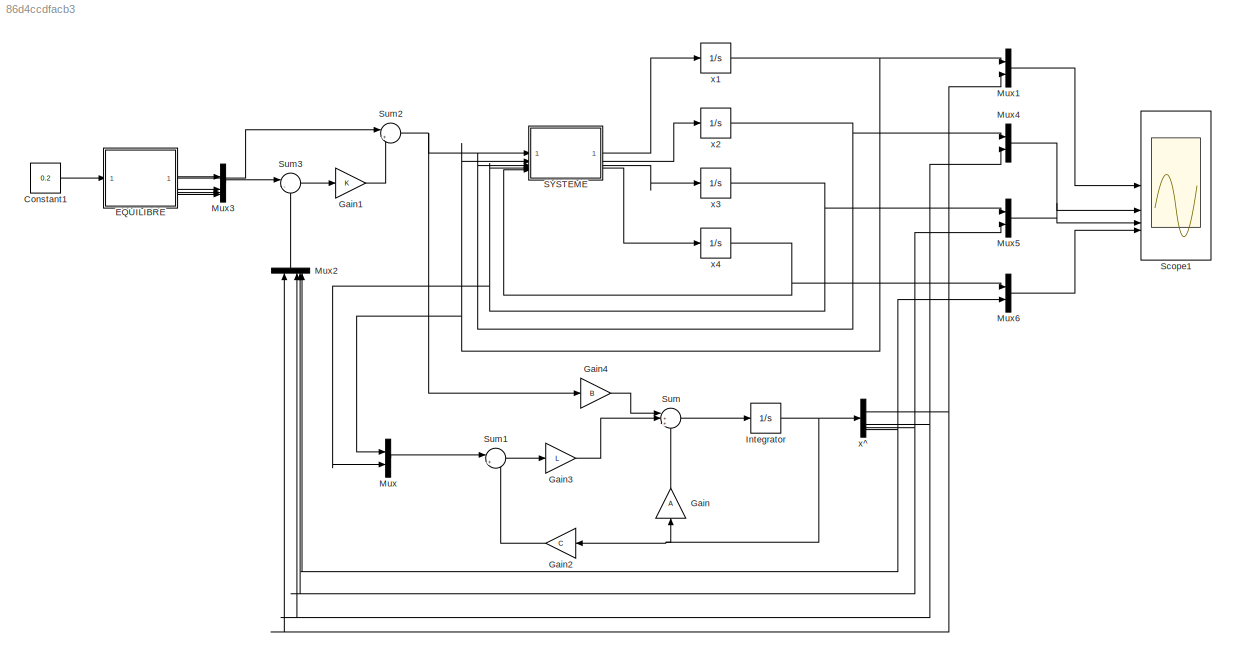
MODEL slx_86d4ccdfacb3
KIND model
CONFIG AbsTol = auto
CONFIG EnableMultiTasking = off
CONFIG FixedStep = auto
CONFIG MaxStep = auto
CONFIG MinStep = auto
CONFIG RelTol = 1e-3
CONFIG SampleTimeConstraint = Unconstrained
CONFIG SolverName = VariableStepAuto
CONFIG StartTime = 0.0
CONFIG StopTime = 5
BLOCK [Constant] Constant1
  Value = 0.2
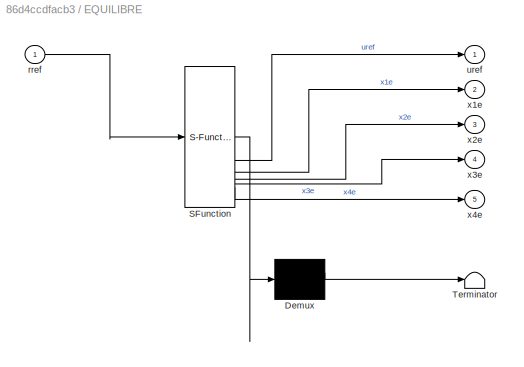
BLOCK [SubSystem] EQUILIBRE
  ErrorFcn = Stateflow.Translate.translate
  LibrarySourceBlock = simulink/User-Defined\nFunctions/MATLAB Function
  PermitHierarchicalResolution = ExplicitOnly
  SFBlockType = MATLAB Function
  TreatAsAtomicUnit = on
BLOCK [Demux] EQUILIBRE/ Demux 
  Outputs = 1
BLOCK [S-Function] EQUILIBRE/ SFunction 
  EnableBusSupport = on
  FunctionName = sf_sfun
  PortCounts = [1 6]
  SFcnIsStateOwnerBlock = off
  SFunctionDeploymentMode = off
  Tag = Stateflow S-Function 2
BLOCK [Terminator] EQUILIBRE/ Terminator 
BLOCK [Inport] EQUILIBRE/rref
BLOCK [Outport] EQUILIBRE/uref
BLOCK [Outport] EQUILIBRE/x1e
  Port = 2
BLOCK [Outport] EQUILIBRE/x2e
  Port = 3
BLOCK [Outport] EQUILIBRE/x3e
  Port = 4
BLOCK [Outport] EQUILIBRE/x4e
  Port = 5
BLOCK [Gain] Gain
  Gain = A
  Multiplication = Matrix(K*u)
  NameLocation = right
BLOCK [Gain] Gain1
  Gain = K
  Multiplication = Matrix(K*u)
BLOCK [Gain] Gain2
  Gain = C
  Multiplication = Matrix(K*u)
  NameLocation = top
BLOCK [Gain] Gain3
  Gain = L
  Multiplication = Matrix(K*u)
BLOCK [Gain] Gain4
  Gain = B
  Multiplication = Matrix(K*u)
BLOCK [Integrator] Integrator
BLOCK [Mux] Mux
  DisplayOption = bar
  Inputs = 2
BLOCK [Mux] Mux1
  DisplayOption = bar
  Inputs = 2
BLOCK [Mux] Mux2
  DisplayOption = bar
  NameLocation = right
BLOCK [Mux] Mux3
  DisplayOption = bar
BLOCK [Mux] Mux4
  DisplayOption = bar
  Inputs = 2
BLOCK [Mux] Mux5
  DisplayOption = bar
  Inputs = 2
BLOCK [Mux] Mux6
  DisplayOption = bar
  Inputs = 2
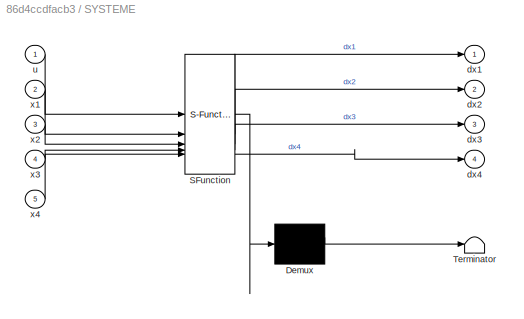
BLOCK [SubSystem] SYSTEME
  ErrorFcn = Stateflow.Translate.translate
  LibrarySourceBlock = simulink/User-Defined\nFunctions/MATLAB Function
  PermitHierarchicalResolution = ExplicitOnly
  SFBlockType = MATLAB Function
  TreatAsAtomicUnit = on
BLOCK [Demux] SYSTEME/ Demux 
  Outputs = 1
BLOCK [S-Function] SYSTEME/ SFunction 
  EnableBusSupport = on
  FunctionName = sf_sfun
  PortCounts = [5 5]
  SFcnIsStateOwnerBlock = off
  SFunctionDeploymentMode = off
  Tag = Stateflow S-Function 4
BLOCK [Terminator] SYSTEME/ Terminator 
BLOCK [Outport] SYSTEME/dx1
BLOCK [Outport] SYSTEME/dx2
  Port = 2
BLOCK [Outport] SYSTEME/dx3
  Port = 3
BLOCK [Outport] SYSTEME/dx4
  Port = 4
BLOCK [Inport] SYSTEME/u
BLOCK [Inport] SYSTEME/x1
  Port = 2
BLOCK [Inport] SYSTEME/x2
  Port = 3
BLOCK [Inport] SYSTEME/x3
  Port = 4
BLOCK [Inport] SYSTEME/x4
  Port = 5
BLOCK [Scope] Scope1
  Floating = off
  NumInputPorts = 4
  ScopeSpecificationString = Simulink.scopes.TimeScopeBlockCfg('CurrentConfiguration', extmgr.ConfigurationSet(extmgr.Configuration('Core','General UI',true),extmgr.Configuration('Core','Source UI',true),extmgr.Configuration('Sources','WiredSimulink',true,'DataLoggingVariableName','ScopeData1'),extmgr.Configuration('Visuals','Time Domain',true,'SerializedDisplays',{struct('MinYLimReal','-1.59093','MaxYLimReal','14.3184','YLab...<+3428ch>
BLOCK [Sum] Sum
  Inputs = |+++
BLOCK [Sum] Sum1
  Inputs = |+-
BLOCK [Sum] Sum2
  Inputs = |+-
BLOCK [Sum] Sum3
  Inputs = |-+
BLOCK [Integrator] x1
  InitialCondition = 0.1
BLOCK [Integrator] x2
  InitialCondition = 0.1
BLOCK [Integrator] x3
BLOCK [Integrator] x4
BLOCK [Demux] x^
LINE Constant1:1 -> EQUILIBRE:1
LINE EQUILIBRE:1 -> Sum2:1
LINE EQUILIBRE:2 -> Mux3:1
LINE EQUILIBRE:3 -> Mux3:2
LINE EQUILIBRE:4 -> Mux3:3
LINE EQUILIBRE:5 -> Mux3:4
LINE Gain1:1 -> Sum2:2
LINE Gain2:1 -> Sum1:2
LINE Gain3:1 -> Sum:2
LINE Gain4:1 -> Sum:1
LINE Gain:1 -> Sum:3
NET Integrator:1 -> Gain2:1, Gain:1, x^:1
LINE Mux1:1 -> Scope1:1
LINE Mux2:1 -> Sum3:2
LINE Mux3:1 -> Sum3:1
LINE Mux4:1 -> Scope1:2
LINE Mux5:1 -> Scope1:3
LINE Mux6:1 -> Scope1:4
LINE Mux:1 -> Sum1:1
LINE SYSTEME:1 -> x1:1
LINE SYSTEME:2 -> x2:1
LINE SYSTEME:3 -> x3:1
LINE SYSTEME:4 -> x4:1
LINE Sum1:1 -> Gain3:1
NET Sum2:1 -> Gain4:1, SYSTEME:1
LINE Sum3:1 -> Gain1:1
LINE Sum:1 -> Integrator:1
NET x1:1 -> Mux1:1, Mux:1, SYSTEME:2
NET x2:1 -> Mux4:1, SYSTEME:3
NET x3:1 -> Mux5:1, Mux:2, SYSTEME:4
NET x4:1 -> Mux6:1, SYSTEME:5
NET x^:1 -> Mux1:2, Mux2:1
NET x^:2 -> Mux2:2, Mux4:2
NET x^:3 -> Mux2:3, Mux5:2
NET x^:4 -> Mux2:4, Mux6:2
note: NET lines group one-source signal fan-out (src -> all destinations, sorted); 1:1 wires keep LINE
CHART EQUILIBRE states=1 transitions=1
  STATE_LABEL 'eML_blk_kernel()'
  STATE_LABEL "SCRIPT:\nfunction [uref, x1e, x2e, x3e, x4e]  = fcn(rref)\n\n%paramètres du système\nm = 0.6;\ng = 9.81;\n\n%l'état d'équilibre\nx1e = rref;\nx2e = 0;\nx3e = 0;\nx4e = 0;\n\n%commande d'équilibre\nuref = m*g*rref;\n\n\n"
CHART SYSTEME states=1 transitions=1
  STATE_LABEL 'eML_blk_kernel()'
  STATE_LABEL 'SCRIPT:\nfunction [dx1, dx2, dx3, dx4] = fcn(u, x1, x2, x3, x4)\n\n%paramètres du système\nJ = 0.02;\nm = 0.6;\nsigma = 0.8;\ng = 9.81;\n\n%dynamique du système\ndx1 = x2;\ndx2 = (x1*(x4)^2 - g*sin(x3))/(1+sigma);\ndx3 = x4;\ndx4 = (u-m*g*x1*cos(x3)-2*m*x1*x2*x4)/(J+m*(x1)^2);\n\n\n'
CHART  states=0 transitions=0
CHART  states=0 transitions=0
